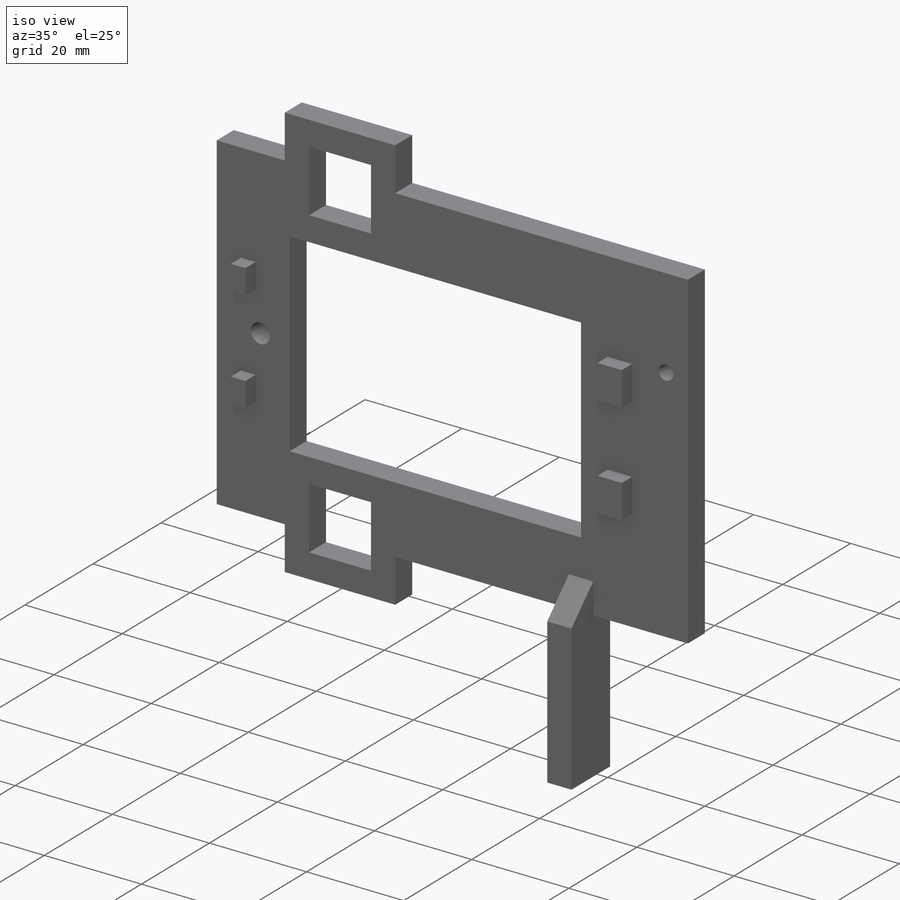
[diagram: iso view]
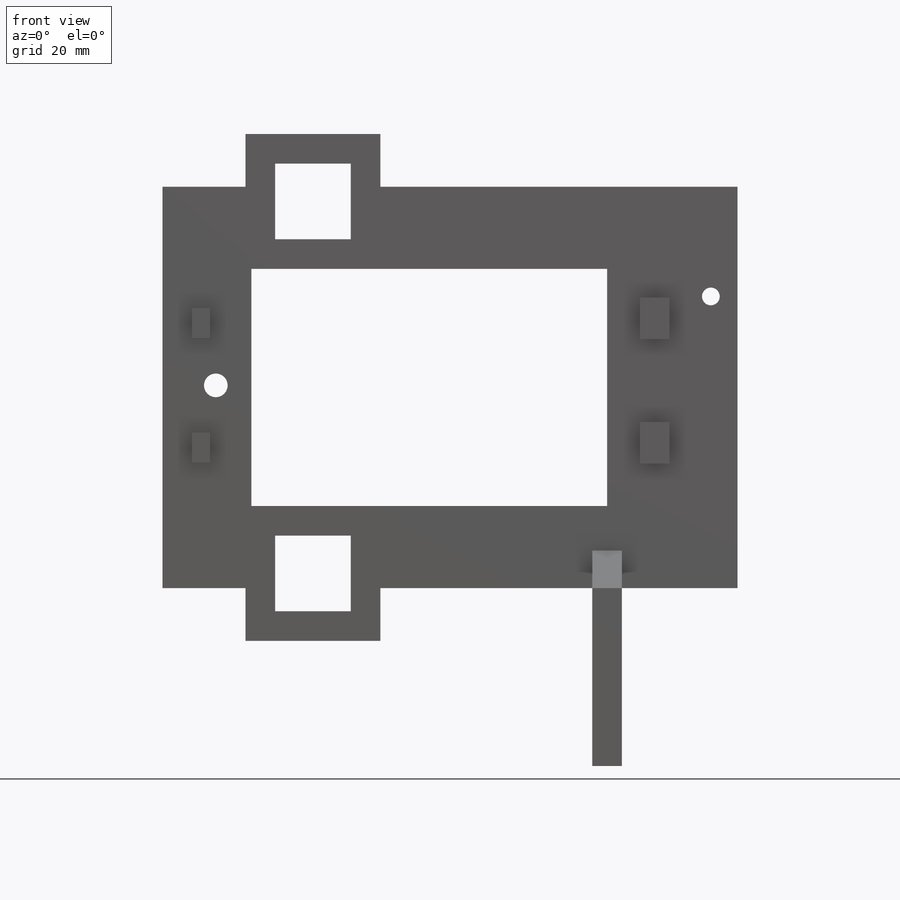
[diagram: front view]
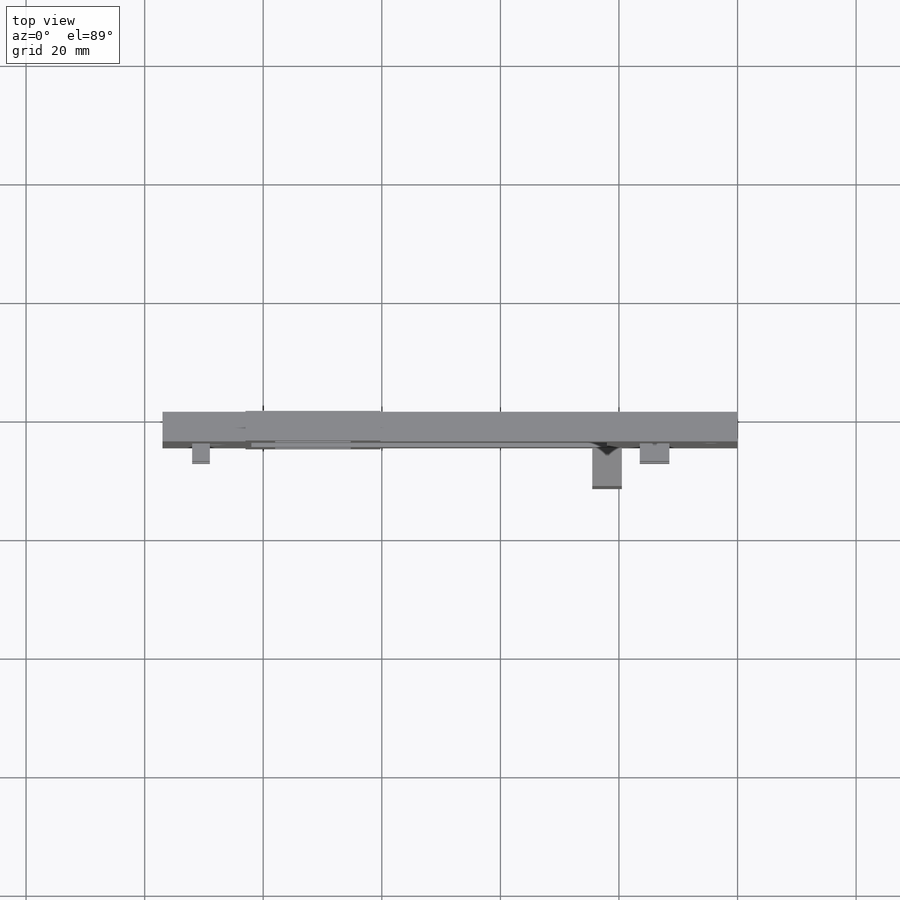
[diagram: top view]
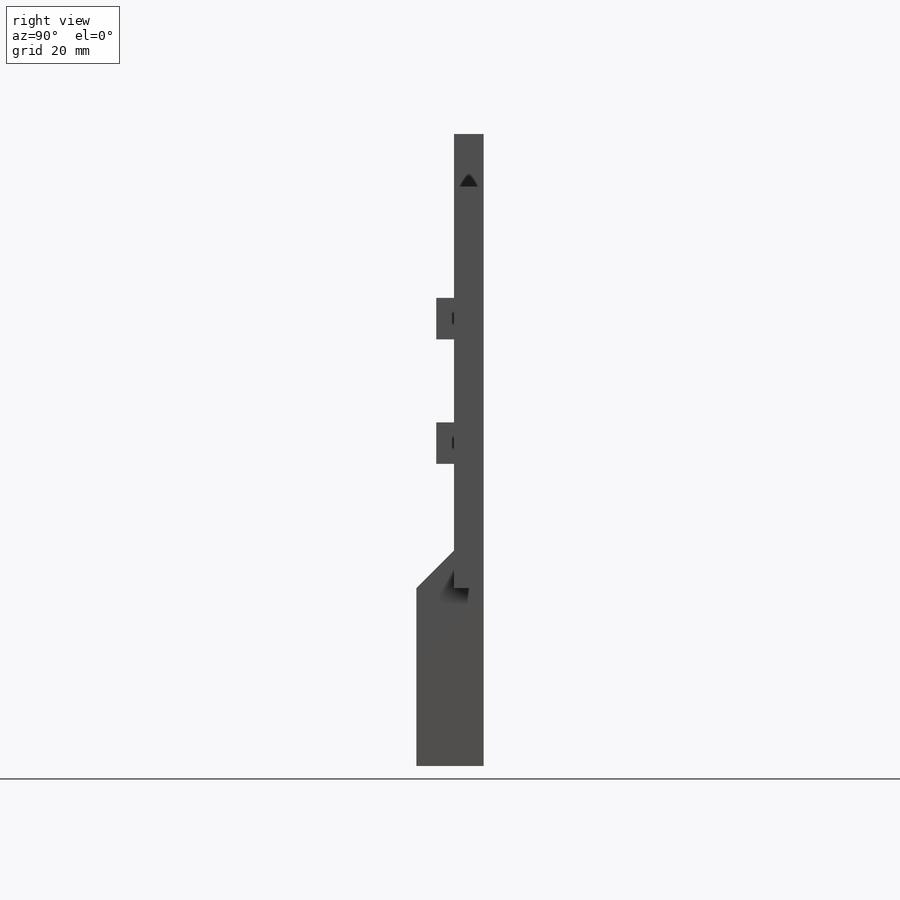
[diagram: right view]
SOLIDWORKS PART (.sldprt)
format: sldprt  version: not decoded by parser v0  size: 300,032 bytes
history: native  units: mm
features: sketch x7, extrude x5, cut_extrude x2, material x1 (+16 scaffold rows collapsed)
feature tree (31):
  scaffold x16  (default folders/planes/origin — collapsed)
  material  "Material <not specified>"
  sketch  "Sketch1"  dims[D1=97.0mm D2=67.7mm]
  extrude  "Boss-Extrude1"  Depth=5mm
  sketch  "Sketch2"  dims[c1.D1=4.0mm c1.D4=3.0mm c1.D7=35.5mm c1.D8=35.5mm c2.D7=3.0mm c2.D2=9.0mm c2.D3=18.5mm c2.D5=4.5mm c2.D6=34.0mm c2.D8=20.25mm c2.D9=34.75mm c2.D10=10.0mm c2.D11=15.0mm c3.D6=34.0mm c3.D3=18.5mm c3.D8=20.25mm c4.D3=1.0mm c4.D6=15.0mm c4.D8=~50.837651mm c4.D5=57.75mm c4.D2=25.75mm c5.D8=20.0mm c5.D2=60.0mm c5.D3=40.0mm c5.D5=15.0mm c5.D6=4.0mm c5.D7=33.5mm c6.D8=7.5mm c6.D9=97.0mm c7.D8=5.0mm c7.D9=4.5mm c7.D10=5.0mm c7.D11=3.0mm c7.D12=7.0mm c7.D13=5.0mm c7.D14=8.0mm c7.D15=8.0mm c7.D16=1.0mm c7.D17=1.0mm c7.D18=7.0mm c7.D19=0.25mm c7.D20=14.0mm c8.D15=16.0mm c8.D17=3.0mm c8.D8=15.0mm c8.D6=9.0mm c8.D7=34.2mm]
  cut_extrude  "Cut-Extrude1"  [1 undecoded]
  sketch  "Sketch3"  dims[D1=5.0mm D2=3.0mm D3=8.0mm D4=16.0mm D5=1.0mm D6=7.0mm D7=5.0mm D8=0.25mm D9=14.0mm D10=7.0mm D11=~6.168331mm]
  extrude  "Boss-Extrude2"  Depth=3mm
  sketch  "Sketch4"  dims[D1=10.0mm D2=12.75mm D3=12.75mm D4=5.0mm D5=5.0mm]
  sketch  "Sketch7"  dims[c1.D4=3.175mm c1.D1=22.0mm c1.D2=5.0mm c1.D3=6.35mm c2.D4=47.15mm]
  extrude  "Boss-Extrude4"  Depth=30mm
  sketch  "Sketch8"  dims[c1.D1=~11.664191mm c2.D1=45.0deg]
  extrude  "Boss-Extrude5"  [1 undecoded]
  cut_extrude  "Cut-Extrude2"  [1 undecoded]
  sketch  "Sketch10"  dims[D1=12.75mm D2=5.0mm D3=5.0mm D4=5.0mm]
  extrude  "Boss-Extrude6"  [1 undecoded]
decode coverage: 10 of 14 modeling features carry decoded parameters
note: ~ marks probable driven/reference dimensions
note: 4 parameter values undecoded
summary: no parameter record found for 4 features
note: suppression state not decoded; provenance and decode notes live in map.json
